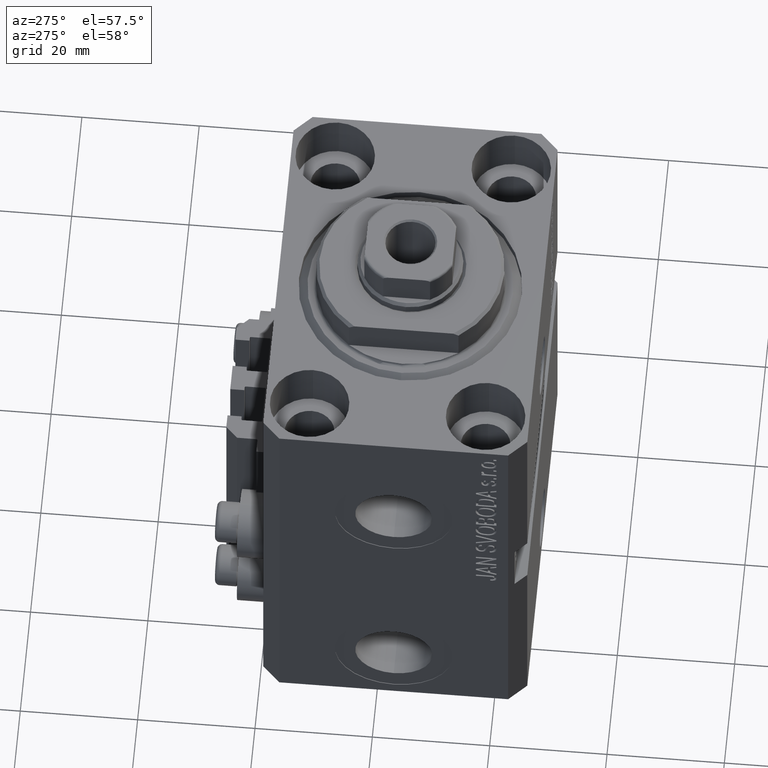
[diagram: clean part render]
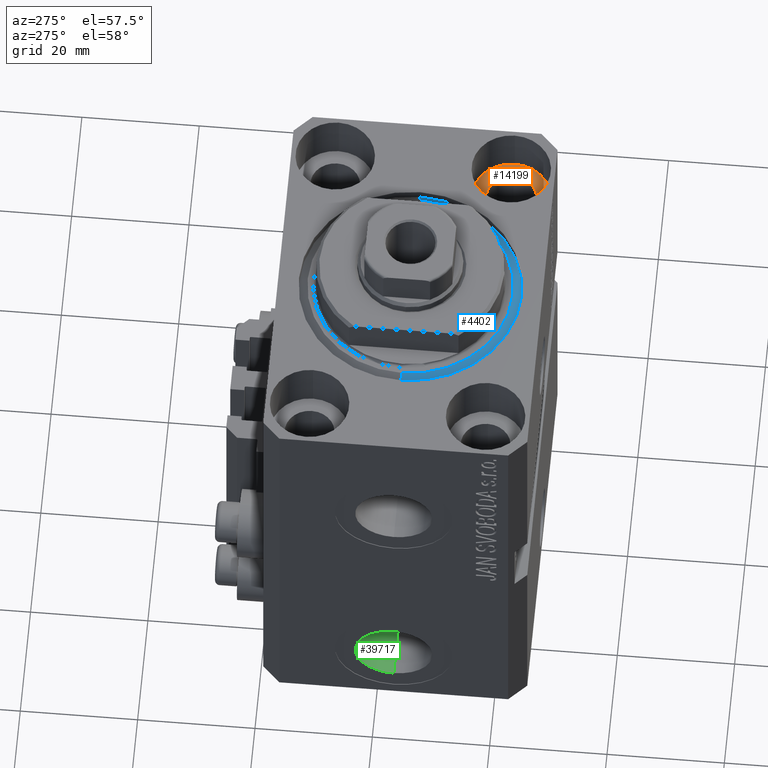
[diagram: same view with three faces highlighted in distinct colors, each labeled with its STEP entity id]
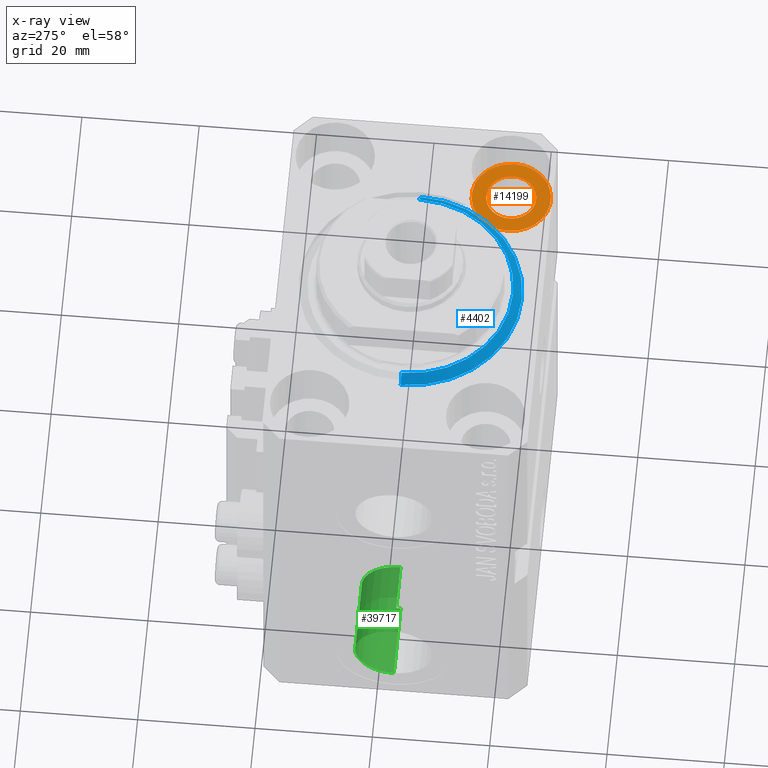
[diagram: x-ray of the same camera — body ghosted, the three highlighted faces saturated]
A machine part, auxiliary view with three faces highlighted in distinct colors.
The next image is the same camera in x-ray (body ghosted, the three faces saturated) — at least one of them is partly hidden behind the body in this view.
Their STEP definitions:

[orange] entity #14199 — the highlighted planar face has unit normal (0, 0, 1).
#71 = PLANE ( 'NONE',  #36167 ) ;
#278 = CIRCLE ( 'NONE', #27217, 6.749999999977465137 ) ;
#768 = CIRCLE ( 'NONE', #34604, 4.249999999977462473 ) ;
#1086 = CARTESIAN_POINT ( 'NONE',  ( 25.00000000000000355, -15.00000000000000000, -9.000000000000000000 ) ) ;
#1169 = DIRECTION ( 'NONE',  ( 1.000000000000000000, 0.000000000000000000, 0.000000000000000000 ) ) ;
#7684 = DIRECTION ( 'NONE',  ( 0.000000000000000000, 0.000000000000000000, 1.000000000000000000 ) ) ;
#7802 = ORIENTED_EDGE ( 'NONE', *, *, #12323, .T. ) ;
#11174 = DIRECTION ( 'NONE',  ( 1.000000000000000000, 0.000000000000000000, -0.000000000000000000 ) ) ;
#11550 = CARTESIAN_POINT ( 'NONE',  ( 25.00000000000000355, -15.00000000000000000, -9.000000000000000000 ) ) ;
#12323 = EDGE_CURVE ( 'NONE', #41801, #14318, #22292, .T. ) ;
#12426 = ORIENTED_EDGE ( 'NONE', *, *, #25732, .T. ) ;
#12612 = AXIS2_PLACEMENT_3D ( 'NONE', #11550, #7684, #1169 ) ;
#13860 = EDGE_CURVE ( 'NONE', #22544, #28522, #768, .T. ) ;
#14199 = ADVANCED_FACE ( 'NONE', ( #14787, #33089 ), #71, .T. ) ;
#14318 = VERTEX_POINT ( 'NONE', #35943 ) ;
#14787 = FACE_BOUND ( 'NONE', #33312, .T. ) ;
#16691 = DIRECTION ( 'NONE',  ( 1.000000000000000000, 0.000000000000000000, 0.000000000000000000 ) ) ;
#17167 = DIRECTION ( 'NONE',  ( 0.000000000000000000, 0.000000000000000000, 1.000000000000000000 ) ) ;
#17486 = ORIENTED_EDGE ( 'NONE', *, *, #23136, .F. ) ;
#19943 = AXIS2_PLACEMENT_3D ( 'NONE', #36396, #29161, #20767 ) ;
#20767 = DIRECTION ( 'NONE',  ( 1.000000000000000000, 0.000000000000000000, 0.000000000000000000 ) ) ;
#22292 = CIRCLE ( 'NONE', #19943, 6.749999999977465137 ) ;
#22486 = CARTESIAN_POINT ( 'NONE',  ( 29.24999999997746869, -15.00000000000000000, -9.000000000000000000 ) ) ;
#22544 = VERTEX_POINT ( 'NONE', #37223 ) ;
#23136 = EDGE_CURVE ( 'NONE', #28522, #22544, #35679, .T. ) ;
#24873 = CARTESIAN_POINT ( 'NONE',  ( 25.00000000000000355, -15.00000000000000000, -9.000000000000000000 ) ) ;
#25051 = EDGE_LOOP ( 'NONE', ( #7802, #12426 ) ) ;
#25732 = EDGE_CURVE ( 'NONE', #14318, #41801, #278, .T. ) ;
#26873 = DIRECTION ( 'NONE',  ( 1.000000000000000000, 0.000000000000000000, 0.000000000000000000 ) ) ;
#27217 = AXIS2_PLACEMENT_3D ( 'NONE', #24873, #17167, #16691 ) ;
#28522 = VERTEX_POINT ( 'NONE', #22486 ) ;
#29161 = DIRECTION ( 'NONE',  ( 0.000000000000000000, 0.000000000000000000, 1.000000000000000000 ) ) ;
#29477 = CARTESIAN_POINT ( 'NONE',  ( 25.00000000000000355, -15.00000000000000000, -9.000000000000000000 ) ) ;
#30468 = ORIENTED_EDGE ( 'NONE', *, *, #13860, .F. ) ;
#33089 = FACE_OUTER_BOUND ( 'NONE', #25051, .T. ) ;
#33312 = EDGE_LOOP ( 'NONE', ( #17486, #30468 ) ) ;
#34604 = AXIS2_PLACEMENT_3D ( 'NONE', #1086, #45220, #26873 ) ;
#35679 = CIRCLE ( 'NONE', #12612, 4.249999999977462473 ) ;
#35943 = CARTESIAN_POINT ( 'NONE',  ( 18.25000000002253842, -15.00000000000000000, -9.000000000000000000 ) ) ;
#36167 = AXIS2_PLACEMENT_3D ( 'NONE', #29477, #44210, #11174 ) ;
#36396 = CARTESIAN_POINT ( 'NONE',  ( 25.00000000000000355, -15.00000000000000000, -9.000000000000000000 ) ) ;
#36718 = CARTESIAN_POINT ( 'NONE',  ( 31.74999999997746869, -15.00000000000000000, -9.000000000000000000 ) ) ;
#37223 = CARTESIAN_POINT ( 'NONE',  ( 20.75000000002254197, -15.00000000000000000, -9.000000000000000000 ) ) ;
#41801 = VERTEX_POINT ( 'NONE', #36718 ) ;
#44210 = DIRECTION ( 'NONE',  ( 0.000000000000000000, 0.000000000000000000, 1.000000000000000000 ) ) ;
#45220 = DIRECTION ( 'NONE',  ( 0.000000000000000000, 0.000000000000000000, 1.000000000000000000 ) ) ;

[blue] entity #4402 — the highlighted conical surface has half-angle 45 deg.
#275 = EDGE_LOOP ( 'NONE', ( #38080, #7558, #5757, #1731 ) ) ;
#719 = CARTESIAN_POINT ( 'NONE',  ( -17.49999999999999289, 2.234980408443919215E-15, 0.000000000000000000 ) ) ;
#1188 = DIRECTION ( 'NONE',  ( 1.000000000000000000, 0.000000000000000000, 0.000000000000000000 ) ) ;
#1493 = CARTESIAN_POINT ( 'NONE',  ( 17.49999999999999289, 0.000000000000000000, 0.000000000000000000 ) ) ;
#1731 = ORIENTED_EDGE ( 'NONE', *, *, #20409, .F. ) ;
#3224 = CIRCLE ( 'NONE', #31730, 17.49999999999999289 ) ;
#4402 = ADVANCED_FACE ( 'NONE', ( #31092 ), #8278, .T. ) ;
#5267 = DIRECTION ( 'NONE',  ( -0.7071067811865483499, 8.659560562354943952E-17, 0.7071067811865467956 ) ) ;
#5757 = ORIENTED_EDGE ( 'NONE', *, *, #25539, .T. ) ;
#5969 = CARTESIAN_POINT ( 'NONE',  ( -19.00000000000000000, 2.326828918379970970E-15, 1.500000000000004885 ) ) ;
#7558 = ORIENTED_EDGE ( 'NONE', *, *, #36613, .F. ) ;
#7644 = VECTOR ( 'NONE', #5267, 1000.000000000000000 ) ;
#8278 = CONICAL_SURFACE ( 'NONE', #34445, 19.00000000000000000, 0.7853981633974492782 ) ;
#8752 = EDGE_CURVE ( 'NONE', #46109, #36504, #27920, .T. ) ;
#8976 = CARTESIAN_POINT ( 'NONE',  ( 19.00000000000000000, 2.326828918379970970E-15, 1.500000000000004885 ) ) ;
#12788 = DIRECTION ( 'NONE',  ( -0.000000000000000000, -0.000000000000000000, 1.000000000000000000 ) ) ;
#13286 = CIRCLE ( 'NONE', #28694, 19.00000000000000000 ) ;
#13359 = VECTOR ( 'NONE', #26353, 1000.000000000000000 ) ;
#14947 = DIRECTION ( 'NONE',  ( 1.000000000000000000, 0.000000000000000000, 0.000000000000000000 ) ) ;
#18410 = LINE ( 'NONE', #40339, #13359 ) ;
#18949 = VERTEX_POINT ( 'NONE', #1493 ) ;
#20409 = EDGE_CURVE ( 'NONE', #36504, #42842, #13286, .T. ) ;
#25539 = EDGE_CURVE ( 'NONE', #18949, #42842, #18410, .T. ) ;
#26031 = DIRECTION ( 'NONE',  ( -0.000000000000000000, -0.000000000000000000, 1.000000000000000000 ) ) ;
#26353 = DIRECTION ( 'NONE',  ( 0.7071067811865483499, 0.000000000000000000, 0.7071067811865467956 ) ) ;
#27920 = LINE ( 'NONE', #5969, #7644 ) ;
#28203 = CARTESIAN_POINT ( 'NONE',  ( -19.00000000000000000, 0.000000000000000000, 1.500000000000004885 ) ) ;
#28694 = AXIS2_PLACEMENT_3D ( 'NONE', #29640, #26031, #1188 ) ;
#29640 = CARTESIAN_POINT ( 'NONE',  ( 0.000000000000000000, 0.000000000000000000, 1.500000000000004885 ) ) ;
#31092 = FACE_OUTER_BOUND ( 'NONE', #275, .T. ) ;
#31334 = CARTESIAN_POINT ( 'NONE',  ( 0.000000000000000000, 0.000000000000000000, 1.500000000000004885 ) ) ;
#31730 = AXIS2_PLACEMENT_3D ( 'NONE', #40969, #32768, #14947 ) ;
#32768 = DIRECTION ( 'NONE',  ( -0.000000000000000000, -0.000000000000000000, -1.000000000000000000 ) ) ;
#34445 = AXIS2_PLACEMENT_3D ( 'NONE', #31334, #12788, #37862 ) ;
#36504 = VERTEX_POINT ( 'NONE', #28203 ) ;
#36613 = EDGE_CURVE ( 'NONE', #18949, #46109, #3224, .T. ) ;
#37862 = DIRECTION ( 'NONE',  ( 1.000000000000000000, 0.000000000000000000, 0.000000000000000000 ) ) ;
#38080 = ORIENTED_EDGE ( 'NONE', *, *, #8752, .F. ) ;
#40339 = CARTESIAN_POINT ( 'NONE',  ( 19.00000000000000000, 0.000000000000000000, 1.500000000000004885 ) ) ;
#40969 = CARTESIAN_POINT ( 'NONE',  ( 0.000000000000000000, 0.000000000000000000, 0.000000000000000000 ) ) ;
#42842 = VERTEX_POINT ( 'NONE', #8976 ) ;
#46109 = VERTEX_POINT ( 'NONE', #719 ) ;

[green] entity #39717 — the highlighted cylindrical surface (partial cylindrical patch) has radius 6.58 mm, axis along (-1, -0, -0).
#42 = VECTOR ( 'NONE', #24945, 1000.000000000000000 ) ;
#1353 = CARTESIAN_POINT ( 'NONE',  ( -19.39999999999650271, -6.938893903907228378E-15, -65.00000000000000000 ) ) ;
#1484 = EDGE_LOOP ( 'NONE', ( #30888, #1720, #37473, #5026 ) ) ;
#1720 = ORIENTED_EDGE ( 'NONE', *, *, #9133, .F. ) ;
#2215 = CARTESIAN_POINT ( 'NONE',  ( -32.39999999999650271, -6.938893903907228378E-15, -65.00000000000000000 ) ) ;
#3018 = VERTEX_POINT ( 'NONE', #39087 ) ;
#5026 = ORIENTED_EDGE ( 'NONE', *, *, #5185, .T. ) ;
#5185 = EDGE_CURVE ( 'NONE', #32321, #43316, #13677, .T. ) ;
#5912 = DIRECTION ( 'NONE',  ( -1.000000000000000000, 0.000000000000000000, 0.000000000000000000 ) ) ;
#8038 = CARTESIAN_POINT ( 'NONE',  ( -19.39999999999650271, -6.938893903907228378E-15, -65.00000000000000000 ) ) ;
#8344 = DIRECTION ( 'NONE',  ( -1.000000000000000000, 0.000000000000000000, 0.000000000000000000 ) ) ;
#9133 = EDGE_CURVE ( 'NONE', #3018, #27351, #45393, .T. ) ;
#11340 = AXIS2_PLACEMENT_3D ( 'NONE', #2215, #8344, #20576 ) ;
#11653 = CYLINDRICAL_SURFACE ( 'NONE', #21052, 6.580000000000002736 ) ;
#12414 = CARTESIAN_POINT ( 'NONE',  ( -32.39999999999650271, -6.938893903907228378E-15, -58.42000000000000171 ) ) ;
#13677 = CIRCLE ( 'NONE', #11340, 6.580000000000002736 ) ;
#16127 = EDGE_CURVE ( 'NONE', #3018, #32321, #20624, .T. ) ;
#20576 = DIRECTION ( 'NONE',  ( 0.000000000000000000, 0.000000000000000000, 1.000000000000000000 ) ) ;
#20624 = LINE ( 'NONE', #31684, #42 ) ;
#20652 = DIRECTION ( 'NONE',  ( 0.000000000000000000, 0.000000000000000000, 1.000000000000000000 ) ) ;
#21052 = AXIS2_PLACEMENT_3D ( 'NONE', #8038, #22766, #41303 ) ;
#22766 = DIRECTION ( 'NONE',  ( -1.000000000000000000, -0.000000000000000000, -0.000000000000000000 ) ) ;
#24945 = DIRECTION ( 'NONE',  ( -1.000000000000000000, -0.000000000000000000, -0.000000000000000000 ) ) ;
#25076 = EDGE_CURVE ( 'NONE', #27351, #43316, #32259, .T. ) ;
#25653 = VECTOR ( 'NONE', #43843, 1000.000000000000000 ) ;
#27351 = VERTEX_POINT ( 'NONE', #39218 ) ;
#29964 = FACE_OUTER_BOUND ( 'NONE', #1484, .T. ) ;
#30888 = ORIENTED_EDGE ( 'NONE', *, *, #25076, .F. ) ;
#31267 = CARTESIAN_POINT ( 'NONE',  ( -32.39999999999650271, -6.133076310068269336E-15, -71.57999999999999829 ) ) ;
#31684 = CARTESIAN_POINT ( 'NONE',  ( -19.39999999999650271, -6.938893903907228378E-15, -58.42000000000000171 ) ) ;
#32259 = LINE ( 'NONE', #44080, #25653 ) ;
#32321 = VERTEX_POINT ( 'NONE', #12414 ) ;
#37473 = ORIENTED_EDGE ( 'NONE', *, *, #16127, .T. ) ;
#38446 = AXIS2_PLACEMENT_3D ( 'NONE', #1353, #5912, #20652 ) ;
#39087 = CARTESIAN_POINT ( 'NONE',  ( -19.39999999999650271, -6.938893903907228378E-15, -58.42000000000000171 ) ) ;
#39218 = CARTESIAN_POINT ( 'NONE',  ( -19.39999999999650271, -6.133076310068269336E-15, -71.57999999999999829 ) ) ;
#39717 = ADVANCED_FACE ( 'NONE', ( #29964 ), #11653, .F. ) ;
#41303 = DIRECTION ( 'NONE',  ( 0.000000000000000000, 0.000000000000000000, 1.000000000000000000 ) ) ;
#43316 = VERTEX_POINT ( 'NONE', #31267 ) ;
#43843 = DIRECTION ( 'NONE',  ( -1.000000000000000000, -0.000000000000000000, -0.000000000000000000 ) ) ;
#44080 = CARTESIAN_POINT ( 'NONE',  ( -19.39999999999650271, -6.133076310068269336E-15, -71.57999999999999829 ) ) ;
#45393 = CIRCLE ( 'NONE', #38446, 6.580000000000002736 ) ;